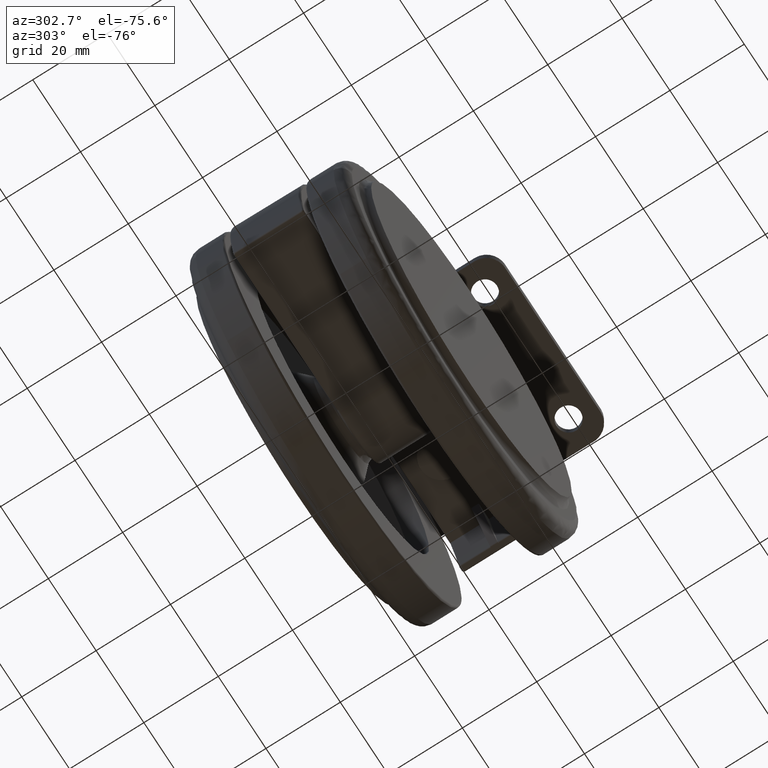
[diagram: clean part render]
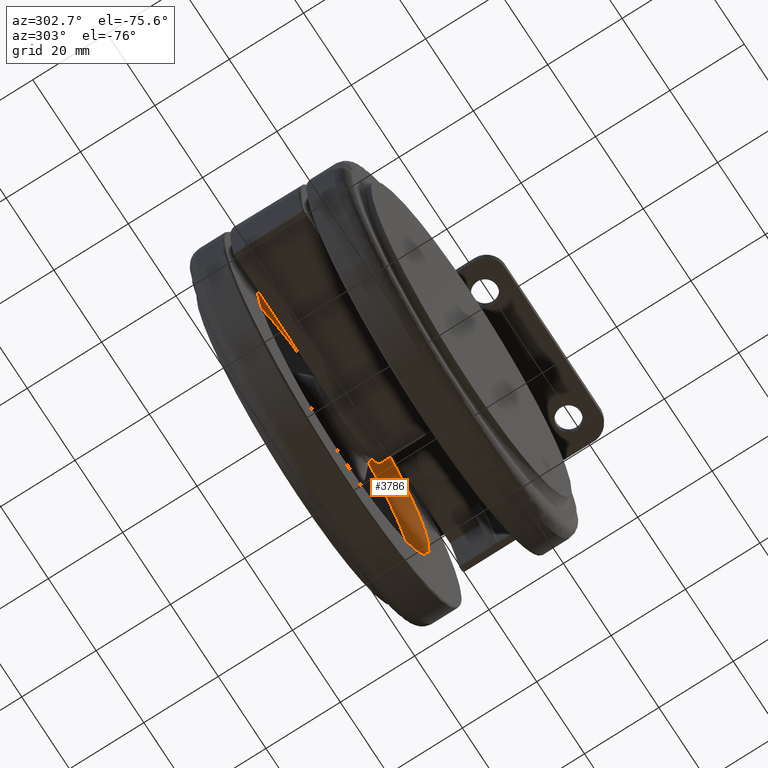
[diagram: same view with one face highlighted and labeled with its STEP entity id]
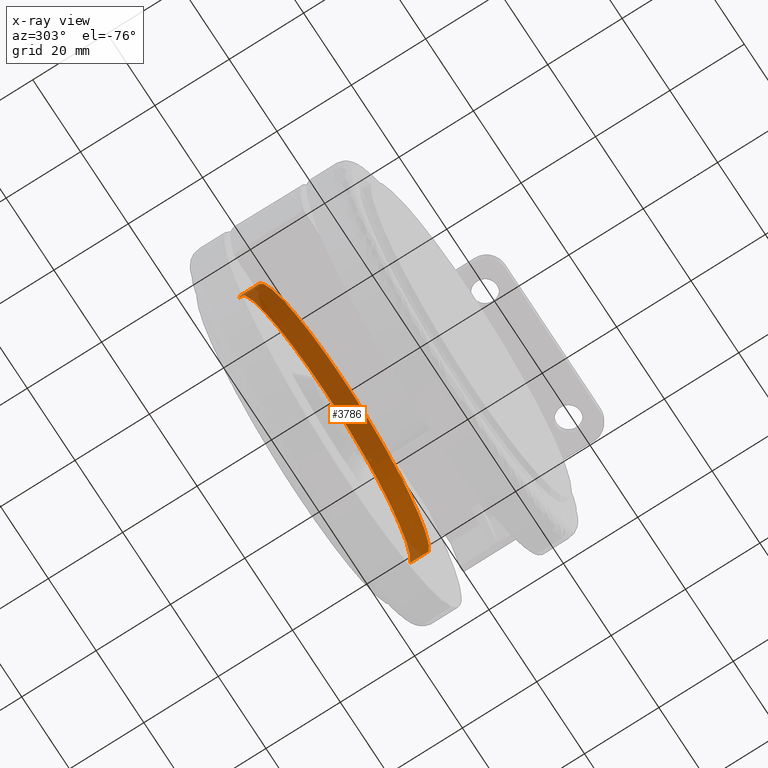
[diagram: x-ray of the same camera — body ghosted, the highlighted face saturated]
A machine part, auxiliary view. The second image highlights one B-rep face of the part: STEP entity #3786.
The next image is the same camera in x-ray: the body ghosted, the highlighted face saturated — about 66% of this face is hidden behind the body in this view.
In plain terms, the highlighted face is a freeform B-spline surface patch.
Its self-contained STEP definition (entity closure, byte-faithful):
#3594=CARTESIAN_POINT('',(11.889024596167051,16.000000000000210,-56.324520054038040));
#3595=VERTEX_POINT('',#3594);
#3609=CARTESIAN_POINT('',(-24.0,16.000000000000298,-17.500000000000000));
#3610=VERTEX_POINT('',#3609);
#3611=CARTESIAN_POINT('',(11.889024596167053,16.000000000000210,-56.324520054038032));
#3612=CARTESIAN_POINT('',(11.999999999999281,16.000000000000206,-54.914440139041574));
#3613=CARTESIAN_POINT('',(11.999999999999289,16.000000000000210,-53.499999999999943));
#3614=CARTESIAN_POINT('',(11.999999999999659,16.000000000000256,-17.499999999999972));
#3615=CARTESIAN_POINT('',(-24.0,16.000000000000298,-17.500000000000000));
#3623=(BOUNDED_CURVE()B_SPLINE_CURVE(2,(#3611,#3612,#3613,#3614,#3615),.UNSPECIFIED.,.F.,.U.)B_SPLINE_CURVE_WITH_KNOTS((3,2,3),(0.236331335941558,0.250000000000000,0.500000000000000),.UNSPECIFIED.)CURVE()GEOMETRIC_REPRESENTATION_ITEM()RATIONAL_B_SPLINE_CURVE((0.969723429858580,0.983986163948172,1.0,0.707106781186547,1.0))REPRESENTATION_ITEM(''));
#3624=EDGE_CURVE('',#3595,#3610,#3623,.T.);
#3626=CARTESIAN_POINT('',(-59.889024596166983,16.000000000000210,-50.675479945961953));
#3627=VERTEX_POINT('',#3626);
#3628=CARTESIAN_POINT('',(-24.0,16.000000000000298,-17.500000000000000));
#3629=CARTESIAN_POINT('',(-57.278064575266889,16.000000000000256,-17.500000000000046));
#3630=CARTESIAN_POINT('',(-59.889024596166983,16.000000000000203,-50.675479945961953));
#3638=(BOUNDED_CURVE()B_SPLINE_CURVE(2,(#3628,#3629,#3630),.UNSPECIFIED.,.F.,.U.)B_SPLINE_CURVE_WITH_KNOTS((3,3),(0.500000000000000,0.736331335941558),.UNSPECIFIED.)CURVE()GEOMETRIC_REPRESENTATION_ITEM()RATIONAL_B_SPLINE_CURVE((1.0,0.723120617238375,0.969723429858580))REPRESENTATION_ITEM(''));
#3639=EDGE_CURVE('',#3610,#3627,#3638,.T.);
#3685=CARTESIAN_POINT('',(-59.889024588997543,11.000000000000281,-50.675479854864903));
#3686=VERTEX_POINT('',#3685);
#3687=CARTESIAN_POINT('',(-59.889024588997543,11.000000000000281,-50.675479854864903));
#3688=CARTESIAN_POINT('',(-59.889024596166983,16.000000000000210,-50.675479945961953));
#3689=QUASI_UNIFORM_CURVE('',1,(#3687,#3688),.UNSPECIFIED.,.F.,.U.);
#3690=EDGE_CURVE('',#3686,#3627,#3689,.T.);
#3709=CARTESIAN_POINT('',(11.889024588997589,11.000000000000281,-56.324520145135089));
#3710=VERTEX_POINT('',#3709);
#3724=CARTESIAN_POINT('',(11.889024588997589,11.000000000000281,-56.324520145135089));
#3725=CARTESIAN_POINT('',(11.889024596167051,16.000000000000210,-56.324520054038040));
#3726=QUASI_UNIFORM_CURVE('',1,(#3724,#3725),.UNSPECIFIED.,.F.,.U.);
#3727=EDGE_CURVE('',#3710,#3595,#3726,.T.);
#3732=CARTESIAN_POINT('',(-59.889024014392540,10.875000000000270,-50.675472553797512));
#3733=CARTESIAN_POINT('',(-57.064496568190059,10.875000000000261,-14.786448539404919));
#3734=CARTESIAN_POINT('',(-21.175472553797459,10.875000000000130,-17.610975985607411));
#3735=CARTESIAN_POINT('',(14.713551460595133,10.875000000000005,-20.435503431809895));
#3736=CARTESIAN_POINT('',(11.889024014392639,10.875000000000020,-56.324527446202488));
#3737=CARTESIAN_POINT('',(-59.889024014392518,16.128125000000558,-50.675472553797512));
#3738=CARTESIAN_POINT('',(-57.064496568190030,16.128125000000555,-14.786448539404919));
#3739=CARTESIAN_POINT('',(-21.175472553797441,16.128125000000420,-17.610975985607411));
#3740=CARTESIAN_POINT('',(14.713551460595147,16.128125000000299,-20.435503431809895));
#3741=CARTESIAN_POINT('',(11.889024014392660,16.128125000000310,-56.324527446202488));
#3749=(BOUNDED_SURFACE()B_SPLINE_SURFACE(2,1,((#3732,#3737),(#3733,#3738),(#3734,#3739),(#3735,#3740),(#3736,#3741)),.UNSPECIFIED.,.F.,.F.,.U.)B_SPLINE_SURFACE_WITH_KNOTS((3,2,3),(2,2),(0.0,59.646752981725683,119.293505963451390),(0.0,5.253125000000293),.UNSPECIFIED.)GEOMETRIC_REPRESENTATION_ITEM()RATIONAL_B_SPLINE_SURFACE(((1.0,1.0),(0.707106781186548,0.707106781186548),(1.0,1.0),(0.707106781186548,0.707106781186548),(1.0,1.0)))REPRESENTATION_ITEM('')SURFACE());
#3750=ORIENTED_EDGE('',*,*,#3624,.F.);
#3751=ORIENTED_EDGE('',*,*,#3727,.F.);
#3752=CARTESIAN_POINT('',(-24.0,11.000000000000281,-17.500000000000000));
#3753=VERTEX_POINT('',#3752);
#3754=CARTESIAN_POINT('',(11.889024588997595,11.000000000000279,-56.324520145135089));
#3755=CARTESIAN_POINT('',(11.999999999999291,11.000000000000277,-54.914440184801478));
#3756=CARTESIAN_POINT('',(11.999999999999300,11.000000000000281,-53.499999999999950));
#3757=CARTESIAN_POINT('',(11.999999999999662,11.000000000000279,-17.499999999999986));
#3758=CARTESIAN_POINT('',(-24.0,11.000000000000281,-17.500000000000000));
#3766=(BOUNDED_CURVE()B_SPLINE_CURVE(2,(#3754,#3755,#3756,#3757,#3758),.UNSPECIFIED.,.F.,.U.)B_SPLINE_CURVE_WITH_KNOTS((3,2,3),(0.236331335506431,0.250000000000000,0.500000000000000),.UNSPECIFIED.)CURVE()GEOMETRIC_REPRESENTATION_ITEM()RATIONAL_B_SPLINE_CURVE((0.969723428950504,0.983986163438390,1.0,0.707106781186547,1.0))REPRESENTATION_ITEM(''));
#3767=EDGE_CURVE('',#3710,#3753,#3766,.T.);
#3768=ORIENTED_EDGE('',*,*,#3767,.T.);
#3769=CARTESIAN_POINT('',(-24.0,11.000000000000281,-17.500000000000000));
#3770=CARTESIAN_POINT('',(-57.278064490536067,11.000000000000281,-17.500000000000028));
#3771=CARTESIAN_POINT('',(-59.889024588997536,11.000000000000281,-50.675479854864903));
#3779=(BOUNDED_CURVE()B_SPLINE_CURVE(2,(#3769,#3770,#3771),.UNSPECIFIED.,.F.,.U.)B_SPLINE_CURVE_WITH_KNOTS((3,3),(0.500000000000000,0.736331335506431),.UNSPECIFIED.)CURVE()GEOMETRIC_REPRESENTATION_ITEM()RATIONAL_B_SPLINE_CURVE((1.0,0.723120617748158,0.969723428950503))REPRESENTATION_ITEM(''));
#3780=EDGE_CURVE('',#3753,#3686,#3779,.T.);
#3781=ORIENTED_EDGE('',*,*,#3780,.T.);
#3782=ORIENTED_EDGE('',*,*,#3690,.T.);
#3783=ORIENTED_EDGE('',*,*,#3639,.F.);
#3784=EDGE_LOOP('',(#3750,#3751,#3768,#3781,#3782,#3783));
#3785=FACE_OUTER_BOUND('',#3784,.T.);
#3786=ADVANCED_FACE('',(#3785),#3749,.F.);